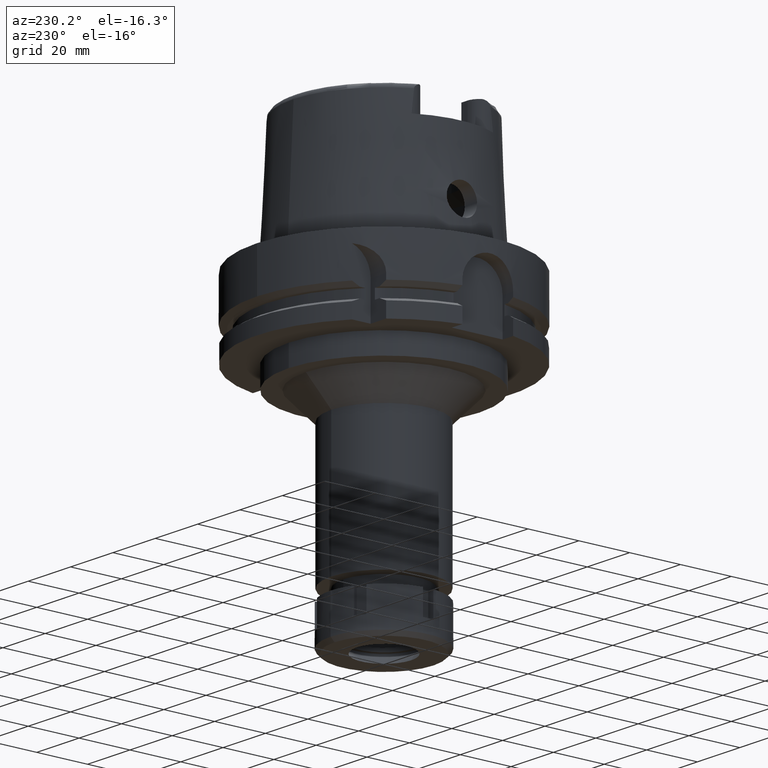
[diagram: clean part render]
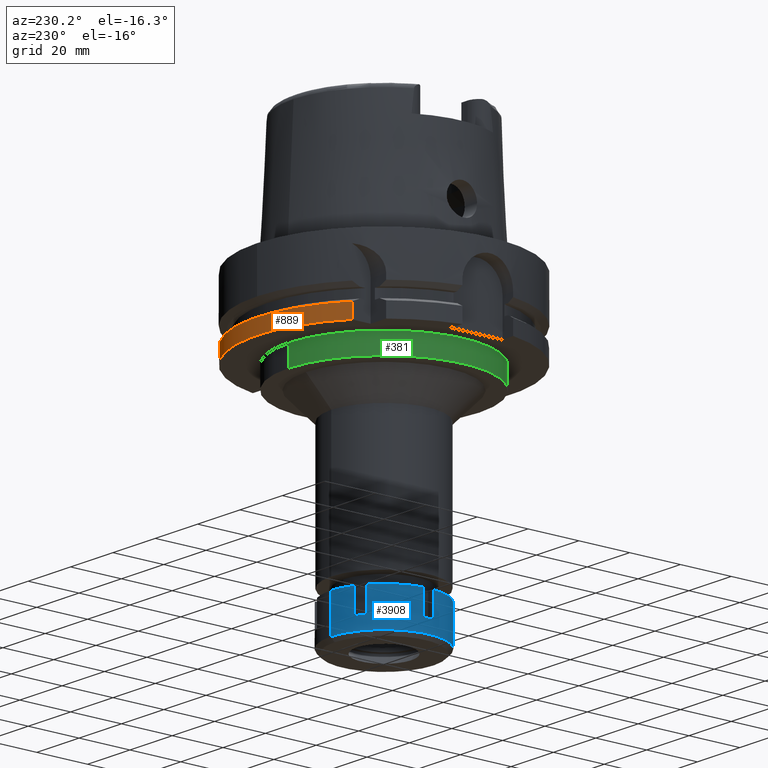
[diagram: same view with three faces highlighted in distinct colors, each labeled with its STEP entity id]
A machine part, auxiliary view with three faces highlighted in distinct colors.
Their STEP definitions:

[orange] entity #889 — the highlighted cylindrical surface (partial cylindrical patch) has radius 50 mm, axis along (0, 0, 1).
#166 = VECTOR ( 'NONE', #1061, 1000.000000000000000 ) ;
#198 = CARTESIAN_POINT ( 'NONE',  ( 48.77499359303000404, 11.00000000000000000, -29.00000000000000000 ) ) ;
#251 = DIRECTION ( 'NONE',  ( 6.188494047474892859E-07, 5.020316378013912240E-07, -0.9999999999996824762 ) ) ;
#511 = CARTESIAN_POINT ( 'NONE',  ( 0.0000000000000000000, 0.0000000000000000000, -23.24759526419000011 ) ) ;
#799 = EDGE_CURVE ( 'NONE', #5349, #1958, #4458, .T. ) ;
#889 = ADVANCED_FACE ( 'NONE', ( #1385 ), #2298, .T. ) ;
#954 = CARTESIAN_POINT ( 'NONE',  ( 0.0000000000000000000, 0.0000000000000000000, -120.0999999999999943 ) ) ;
#1061 = DIRECTION ( 'NONE',  ( -8.399427413532000465E-14, -2.068976605539000027E-14, 1.000000000000000000 ) ) ;
#1308 = CARTESIAN_POINT ( 'NONE',  ( -31.50000355985999789, 38.82975374283000036, -23.24760820811999906 ) ) ;
#1312 = CARTESIAN_POINT ( 'NONE',  ( -31.50000000000000000, 38.82975663071000128, -29.00000000000000000 ) ) ;
#1384 = CIRCLE ( 'NONE', #4995, 50.00000000000000000 ) ;
#1385 = FACE_OUTER_BOUND ( 'NONE', #3966, .T. ) ;
#1469 = DIRECTION ( 'NONE',  ( -0.6299999999999789102, 0.7765951326141738997, 0.0000000000000000000 ) ) ;
#1816 = AXIS2_PLACEMENT_3D ( 'NONE', #511, #1957, #1469 ) ;
#1840 = DIRECTION ( 'NONE',  ( 0.0000000000000000000, 0.0000000000000000000, 1.000000000000000000 ) ) ;
#1957 = DIRECTION ( 'NONE',  ( 0.0000000000000000000, 0.0000000000000000000, -1.000000000000000000 ) ) ;
#1958 = VERTEX_POINT ( 'NONE', #4612 ) ;
#2233 = ORIENTED_EDGE ( 'NONE', *, *, #799, .T. ) ;
#2298 = CYLINDRICAL_SURFACE ( 'NONE', #5737, 50.00000000000000000 ) ;
#2692 = DIRECTION ( 'NONE',  ( 0.0000000000000000000, 1.000000000000000000, 0.0000000000000000000 ) ) ;
#3065 = EDGE_CURVE ( 'NONE', #4512, #4919, #1384, .T. ) ;
#3088 = LINE ( 'NONE', #5403, #4992 ) ;
#3130 = DIRECTION ( 'NONE',  ( 0.0000000000000000000, 0.0000000000000000000, 1.000000000000000000 ) ) ;
#3471 = CARTESIAN_POINT ( 'NONE',  ( 48.77499359303000404, 11.00000000000000000, -29.00000000000000000 ) ) ;
#3707 = DIRECTION ( 'NONE',  ( 0.0000000000000000000, 1.000000000000000000, 0.0000000000000000000 ) ) ;
#3899 = EDGE_CURVE ( 'NONE', #5349, #4919, #3088, .T. ) ;
#3966 = EDGE_LOOP ( 'NONE', ( #2233, #4518, #4289, #4196 ) ) ;
#4196 = ORIENTED_EDGE ( 'NONE', *, *, #3899, .F. ) ;
#4289 = ORIENTED_EDGE ( 'NONE', *, *, #3065, .T. ) ;
#4458 = CIRCLE ( 'NONE', #1816, 50.00000000000000711 ) ;
#4512 = VERTEX_POINT ( 'NONE', #3471 ) ;
#4518 = ORIENTED_EDGE ( 'NONE', *, *, #5163, .F. ) ;
#4612 = CARTESIAN_POINT ( 'NONE',  ( 48.77499359303000404, 11.00000000000000000, -23.24759526419000011 ) ) ;
#4919 = VERTEX_POINT ( 'NONE', #1312 ) ;
#4992 = VECTOR ( 'NONE', #251, 1000.000000000000000 ) ;
#4995 = AXIS2_PLACEMENT_3D ( 'NONE', #5047, #3130, #2692 ) ;
#5047 = CARTESIAN_POINT ( 'NONE',  ( 0.0000000000000000000, 0.0000000000000000000, -29.00000000000000000 ) ) ;
#5163 = EDGE_CURVE ( 'NONE', #4512, #1958, #5812, .T. ) ;
#5349 = VERTEX_POINT ( 'NONE', #1308 ) ;
#5403 = CARTESIAN_POINT ( 'NONE',  ( -31.50000355985999789, 38.82975374283000036, -23.24760820811999906 ) ) ;
#5737 = AXIS2_PLACEMENT_3D ( 'NONE', #954, #1840, #3707 ) ;
#5812 = LINE ( 'NONE', #198, #166 ) ;

[blue] entity #3908 — the highlighted cylindrical surface (partial cylindrical patch) has radius 21 mm, axis along (0, 0, -1).
#98 = AXIS2_PLACEMENT_3D ( 'NONE', #3995, #5835, #3031 ) ;
#107 = DIRECTION ( 'NONE',  ( 0.0000000000000000000, 0.0000000000000000000, -1.000000000000000000 ) ) ;
#119 = ORIENTED_EDGE ( 'NONE', *, *, #3511, .F. ) ;
#162 = VECTOR ( 'NONE', #3887, 1000.000000000000000 ) ;
#223 = LINE ( 'NONE', #5256, #3333 ) ;
#248 = DIRECTION ( 'NONE',  ( 0.0000000000000000000, 0.0000000000000000000, -1.000000000000000000 ) ) ;
#324 = AXIS2_PLACEMENT_3D ( 'NONE', #2501, #5351, #1156 ) ;
#326 = VERTEX_POINT ( 'NONE', #519 ) ;
#429 = VERTEX_POINT ( 'NONE', #5860 ) ;
#458 = CIRCLE ( 'NONE', #4077, 21.00000000000000000 ) ;
#519 = CARTESIAN_POINT ( 'NONE',  ( -12.18432328774999895, 17.10386699022999935, 0.0000000000000000000 ) ) ;
#647 = VECTOR ( 'NONE', #4250, 1000.000000000000000 ) ;
#692 = AXIS2_PLACEMENT_3D ( 'NONE', #749, #3067, #4462 ) ;
#712 = CYLINDRICAL_SURFACE ( 'NONE', #3626, 21.00000000000000000 ) ;
#743 = CARTESIAN_POINT ( 'NONE',  ( 0.0000000000000000000, 0.0000000000000000000, 0.0000000000000000000 ) ) ;
#749 = CARTESIAN_POINT ( 'NONE',  ( 0.0000000000000000000, 0.0000000000000000000, -9.500000000000000000 ) ) ;
#757 = DIRECTION ( 'NONE',  ( 0.0000000000000000000, 0.0000000000000000000, 1.000000000000000000 ) ) ;
#782 = ORIENTED_EDGE ( 'NONE', *, *, #2331, .T. ) ;
#787 = LINE ( 'NONE', #821, #887 ) ;
#820 = VERTEX_POINT ( 'NONE', #6073 ) ;
#821 = CARTESIAN_POINT ( 'NONE',  ( -8.720221672615000585, -19.10386699022999935, -9.500000000000000000 ) ) ;
#887 = VECTOR ( 'NONE', #757, 1000.000000000000000 ) ;
#987 = DIRECTION ( 'NONE',  ( -0.5802058708454290725, -0.8144698566776411575, 0.0000000000000000000 ) ) ;
#1010 = EDGE_LOOP ( 'NONE', ( #119, #1224, #1589, #2506, #3156, #4092, #5450, #2720, #4382, #1102, #4268, #1561, #1967, #3807, #5254, #782 ) ) ;
#1055 = CARTESIAN_POINT ( 'NONE',  ( -8.720221672615000585, 19.10386699022999935, 0.0000000000000000000 ) ) ;
#1089 = CARTESIAN_POINT ( 'NONE',  ( 0.0000000000000000000, 0.0000000000000000000, -14.50000000000000000 ) ) ;
#1102 = ORIENTED_EDGE ( 'NONE', *, *, #5800, .T. ) ;
#1114 = VERTEX_POINT ( 'NONE', #1245 ) ;
#1156 = DIRECTION ( 'NONE',  ( -0.4152486510768949035, 0.9097079519157886818, 0.0000000000000000000 ) ) ;
#1166 = EDGE_CURVE ( 'NONE', #4327, #6039, #5282, .T. ) ;
#1224 = ORIENTED_EDGE ( 'NONE', *, *, #1662, .T. ) ;
#1245 = CARTESIAN_POINT ( 'NONE',  ( -8.720221672615998898, -19.10386699022999935, -9.500000000000000000 ) ) ;
#1277 = AXIS2_PLACEMENT_3D ( 'NONE', #3633, #5442, #4617 ) ;
#1280 = CIRCLE ( 'NONE', #4896, 21.00000000000000711 ) ;
#1387 = VERTEX_POINT ( 'NONE', #1431 ) ;
#1431 = CARTESIAN_POINT ( 'NONE',  ( 0.0000000000000000000, 21.00000000000000000, -14.50000000000000000 ) ) ;
#1441 = CARTESIAN_POINT ( 'NONE',  ( -20.90454496036999998, 2.000000000000000000, -9.500000000000000000 ) ) ;
#1464 = EDGE_CURVE ( 'NONE', #5091, #1387, #2317, .T. ) ;
#1561 = ORIENTED_EDGE ( 'NONE', *, *, #3395, .T. ) ;
#1589 = ORIENTED_EDGE ( 'NONE', *, *, #1464, .T. ) ;
#1662 = EDGE_CURVE ( 'NONE', #2187, #5091, #4535, .T. ) ;
#1713 = CARTESIAN_POINT ( 'NONE',  ( -20.90454496036999998, -2.000000000000000000, -9.500000000000000000 ) ) ;
#1731 = FACE_OUTER_BOUND ( 'NONE', #1010, .T. ) ;
#1768 = CIRCLE ( 'NONE', #692, 21.00000000000000711 ) ;
#1783 = VERTEX_POINT ( 'NONE', #4000 ) ;
#1784 = VERTEX_POINT ( 'NONE', #5433 ) ;
#1799 = CARTESIAN_POINT ( 'NONE',  ( 0.0000000000000000000, -21.00000000000000000, 0.0000000000000000000 ) ) ;
#1833 = DIRECTION ( 'NONE',  ( 0.0000000000000000000, 0.0000000000000000000, -1.000000000000000000 ) ) ;
#1951 = CARTESIAN_POINT ( 'NONE',  ( 0.0000000000000000000, 21.00000000000000000, 0.0000000000000000000 ) ) ;
#1961 = CARTESIAN_POINT ( 'NONE',  ( 0.0000000000000000000, 0.0000000000000000000, 0.0000000000000000000 ) ) ;
#1967 = ORIENTED_EDGE ( 'NONE', *, *, #1166, .F. ) ;
#2138 = LINE ( 'NONE', #4004, #5294 ) ;
#2187 = VERTEX_POINT ( 'NONE', #1055 ) ;
#2221 = DIRECTION ( 'NONE',  ( 0.0000000000000000000, -1.000000000000000000, 0.0000000000000000000 ) ) ;
#2259 = CIRCLE ( 'NONE', #98, 20.99999999999999289 ) ;
#2317 = LINE ( 'NONE', #6062, #647 ) ;
#2331 = EDGE_CURVE ( 'NONE', #2338, #5384, #1280, .T. ) ;
#2338 = VERTEX_POINT ( 'NONE', #3850 ) ;
#2501 = CARTESIAN_POINT ( 'NONE',  ( 0.0000000000000000000, 0.0000000000000000000, 0.0000000000000000000 ) ) ;
#2506 = ORIENTED_EDGE ( 'NONE', *, *, #3854, .T. ) ;
#2533 = DIRECTION ( 'NONE',  ( 0.0000000000000000000, 0.0000000000000000000, 1.000000000000000000 ) ) ;
#2621 = EDGE_CURVE ( 'NONE', #1114, #429, #1768, .T. ) ;
#2629 = EDGE_CURVE ( 'NONE', #3097, #820, #2138, .T. ) ;
#2720 = ORIENTED_EDGE ( 'NONE', *, *, #2621, .T. ) ;
#2999 = CARTESIAN_POINT ( 'NONE',  ( -20.90454496036999998, 2.000000000000000000, 0.0000000000000000000 ) ) ;
#3007 = DIRECTION ( 'NONE',  ( 0.0000000000000000000, -1.000000000000000000, 0.0000000000000000000 ) ) ;
#3031 = DIRECTION ( 'NONE',  ( -0.9954545219222313834, 0.09523809523810303213, 0.0000000000000000000 ) ) ;
#3046 = EDGE_CURVE ( 'NONE', #1114, #3418, #787, .T. ) ;
#3067 = DIRECTION ( 'NONE',  ( 0.0000000000000000000, 0.0000000000000000000, -1.000000000000000000 ) ) ;
#3096 = EDGE_CURVE ( 'NONE', #1784, #5823, #4109, .T. ) ;
#3097 = VERTEX_POINT ( 'NONE', #1713 ) ;
#3156 = ORIENTED_EDGE ( 'NONE', *, *, #3096, .F. ) ;
#3246 = AXIS2_PLACEMENT_3D ( 'NONE', #1089, #5869, #3599 ) ;
#3333 = VECTOR ( 'NONE', #2533, 1000.000000000000000 ) ;
#3348 = DIRECTION ( 'NONE',  ( 0.0000000000000000000, 0.0000000000000000000, -1.000000000000000000 ) ) ;
#3393 = CIRCLE ( 'NONE', #3879, 20.99999999999999645 ) ;
#3395 = EDGE_CURVE ( 'NONE', #3097, #6039, #3431, .T. ) ;
#3418 = VERTEX_POINT ( 'NONE', #5042 ) ;
#3423 = CARTESIAN_POINT ( 'NONE',  ( 0.0000000000000000000, 0.0000000000000000000, 0.0000000000000000000 ) ) ;
#3431 = CIRCLE ( 'NONE', #1277, 20.99999999999999289 ) ;
#3511 = EDGE_CURVE ( 'NONE', #2187, #5384, #5593, .T. ) ;
#3547 = DIRECTION ( 'NONE',  ( 0.0000000000000000000, 0.0000000000000000000, 1.000000000000000000 ) ) ;
#3599 = DIRECTION ( 'NONE',  ( 0.0000000000000000000, 1.000000000000000000, 0.0000000000000000000 ) ) ;
#3626 = AXIS2_PLACEMENT_3D ( 'NONE', #743, #4124, #2221 ) ;
#3633 = CARTESIAN_POINT ( 'NONE',  ( 0.0000000000000000000, 0.0000000000000000000, -9.500000000000000000 ) ) ;
#3701 = EDGE_CURVE ( 'NONE', #2338, #326, #223, .T. ) ;
#3807 = ORIENTED_EDGE ( 'NONE', *, *, #4243, .T. ) ;
#3850 = CARTESIAN_POINT ( 'NONE',  ( -12.18432328774999895, 17.10386699022999935, -9.500000000000000000 ) ) ;
#3854 = EDGE_CURVE ( 'NONE', #1387, #5823, #3924, .T. ) ;
#3879 = AXIS2_PLACEMENT_3D ( 'NONE', #1961, #3348, #987 ) ;
#3887 = DIRECTION ( 'NONE',  ( 0.0000000000000000000, 0.0000000000000000000, -1.000000000000000000 ) ) ;
#3908 = ADVANCED_FACE ( 'NONE', ( #1731 ), #712, .T. ) ;
#3924 = CIRCLE ( 'NONE', #3246, 21.00000000000000000 ) ;
#3965 = CARTESIAN_POINT ( 'NONE',  ( -20.90454496036999998, 2.000000000000000000, 0.0000000000000000000 ) ) ;
#3995 = CARTESIAN_POINT ( 'NONE',  ( 0.0000000000000000000, 0.0000000000000000000, 0.0000000000000000000 ) ) ;
#4000 = CARTESIAN_POINT ( 'NONE',  ( -12.18432328774999895, -17.10386699022999935, 0.0000000000000000000 ) ) ;
#4004 = CARTESIAN_POINT ( 'NONE',  ( -20.90454496036999998, -2.000000000000000000, -9.500000000000000000 ) ) ;
#4077 = AXIS2_PLACEMENT_3D ( 'NONE', #3423, #5380, #3007 ) ;
#4092 = ORIENTED_EDGE ( 'NONE', *, *, #5141, .T. ) ;
#4109 = LINE ( 'NONE', #1799, #5093 ) ;
#4124 = DIRECTION ( 'NONE',  ( 0.0000000000000000000, 0.0000000000000000000, -1.000000000000000000 ) ) ;
#4243 = EDGE_CURVE ( 'NONE', #4327, #326, #2259, .T. ) ;
#4250 = DIRECTION ( 'NONE',  ( 0.0000000000000000000, 0.0000000000000000000, -1.000000000000000000 ) ) ;
#4268 = ORIENTED_EDGE ( 'NONE', *, *, #2629, .F. ) ;
#4292 = CARTESIAN_POINT ( 'NONE',  ( 0.0000000000000000000, -21.00000000000000000, -14.50000000000000000 ) ) ;
#4327 = VERTEX_POINT ( 'NONE', #2999 ) ;
#4382 = ORIENTED_EDGE ( 'NONE', *, *, #4788, .F. ) ;
#4462 = DIRECTION ( 'NONE',  ( -0.4152486510768949035, -0.9097079519157886818, 0.0000000000000000000 ) ) ;
#4504 = VECTOR ( 'NONE', #6060, 1000.000000000000000 ) ;
#4535 = CIRCLE ( 'NONE', #324, 21.00000000000000711 ) ;
#4617 = DIRECTION ( 'NONE',  ( -0.9954545219222313834, -0.09523809523810303213, 0.0000000000000000000 ) ) ;
#4774 = CARTESIAN_POINT ( 'NONE',  ( 0.0000000000000000000, 0.0000000000000000000, -9.500000000000000000 ) ) ;
#4788 = EDGE_CURVE ( 'NONE', #1783, #429, #4895, .T. ) ;
#4852 = VECTOR ( 'NONE', #248, 1000.000000000000000 ) ;
#4895 = LINE ( 'NONE', #5358, #162 ) ;
#4896 = AXIS2_PLACEMENT_3D ( 'NONE', #4774, #107, #5145 ) ;
#5042 = CARTESIAN_POINT ( 'NONE',  ( -8.720221672615998898, -19.10386699022999935, 0.0000000000000000000 ) ) ;
#5091 = VERTEX_POINT ( 'NONE', #1951 ) ;
#5093 = VECTOR ( 'NONE', #1833, 1000.000000000000000 ) ;
#5141 = EDGE_CURVE ( 'NONE', #1784, #3418, #458, .T. ) ;
#5145 = DIRECTION ( 'NONE',  ( -0.5802058708453158298, 0.8144698566777217597, 0.0000000000000000000 ) ) ;
#5254 = ORIENTED_EDGE ( 'NONE', *, *, #3701, .F. ) ;
#5256 = CARTESIAN_POINT ( 'NONE',  ( -12.18432328774999895, 17.10386699022999935, -9.500000000000000000 ) ) ;
#5282 = LINE ( 'NONE', #3965, #4852 ) ;
#5294 = VECTOR ( 'NONE', #3547, 1000.000000000000000 ) ;
#5351 = DIRECTION ( 'NONE',  ( 0.0000000000000000000, 0.0000000000000000000, -1.000000000000000000 ) ) ;
#5358 = CARTESIAN_POINT ( 'NONE',  ( -12.18432328774999895, -17.10386699022999935, 0.0000000000000000000 ) ) ;
#5380 = DIRECTION ( 'NONE',  ( 0.0000000000000000000, 0.0000000000000000000, -1.000000000000000000 ) ) ;
#5384 = VERTEX_POINT ( 'NONE', #5467 ) ;
#5433 = CARTESIAN_POINT ( 'NONE',  ( 0.0000000000000000000, -21.00000000000000000, 0.0000000000000000000 ) ) ;
#5442 = DIRECTION ( 'NONE',  ( 0.0000000000000000000, 0.0000000000000000000, -1.000000000000000000 ) ) ;
#5450 = ORIENTED_EDGE ( 'NONE', *, *, #3046, .F. ) ;
#5467 = CARTESIAN_POINT ( 'NONE',  ( -8.720221672615000585, 19.10386699022999935, -9.500000000000000000 ) ) ;
#5564 = CARTESIAN_POINT ( 'NONE',  ( -8.720221672615000585, 19.10386699022999935, 0.0000000000000000000 ) ) ;
#5593 = LINE ( 'NONE', #5564, #4504 ) ;
#5800 = EDGE_CURVE ( 'NONE', #1783, #820, #3393, .T. ) ;
#5823 = VERTEX_POINT ( 'NONE', #4292 ) ;
#5835 = DIRECTION ( 'NONE',  ( 0.0000000000000000000, 0.0000000000000000000, -1.000000000000000000 ) ) ;
#5860 = CARTESIAN_POINT ( 'NONE',  ( -12.18432328774999895, -17.10386699022999935, -9.500000000000000000 ) ) ;
#5869 = DIRECTION ( 'NONE',  ( 0.0000000000000000000, 0.0000000000000000000, 1.000000000000000000 ) ) ;
#6039 = VERTEX_POINT ( 'NONE', #1441 ) ;
#6060 = DIRECTION ( 'NONE',  ( 0.0000000000000000000, 0.0000000000000000000, -1.000000000000000000 ) ) ;
#6062 = CARTESIAN_POINT ( 'NONE',  ( 0.0000000000000000000, 21.00000000000000000, 0.0000000000000000000 ) ) ;
#6073 = CARTESIAN_POINT ( 'NONE',  ( -20.90454496036999998, -2.000000000000000000, 0.0000000000000000000 ) ) ;

[green] entity #381 — the highlighted cylindrical surface (partial cylindrical patch) has radius 37.5 mm, axis along (0, 0, 1).
#10 = EDGE_CURVE ( 'NONE', #4241, #1941, #5162, .T. ) ;
#52 = DIRECTION ( 'NONE',  ( 0.0000000000000000000, 0.0000000000000000000, -1.000000000000000000 ) ) ;
#60 = DIRECTION ( 'NONE',  ( 0.0000000000000000000, 1.000000000000000000, 0.0000000000000000000 ) ) ;
#140 = DIRECTION ( 'NONE',  ( 0.0000000000000000000, 0.0000000000000000000, 1.000000000000000000 ) ) ;
#141 = EDGE_CURVE ( 'NONE', #4241, #3724, #4831, .T. ) ;
#268 = DIRECTION ( 'NONE',  ( 0.0000000000000000000, 1.000000000000000000, 0.0000000000000000000 ) ) ;
#273 = VERTEX_POINT ( 'NONE', #2895 ) ;
#328 = AXIS2_PLACEMENT_3D ( 'NONE', #4150, #2274, #2643 ) ;
#381 = ADVANCED_FACE ( 'NONE', ( #2799 ), #5159, .T. ) ;
#462 = DIRECTION ( 'NONE',  ( 0.0000000000000000000, 0.0000000000000000000, 1.000000000000000000 ) ) ;
#755 = EDGE_CURVE ( 'NONE', #3724, #273, #5669, .T. ) ;
#962 = CARTESIAN_POINT ( 'NONE',  ( 0.0000000000000000000, 0.0000000000000000000, -120.0999999999999943 ) ) ;
#1018 = DIRECTION ( 'NONE',  ( 0.0000000000000000000, 0.0000000000000000000, -1.000000000000000000 ) ) ;
#1335 = CARTESIAN_POINT ( 'NONE',  ( 0.0000000000000000000, -37.50000000000000000, -37.00000000000000000 ) ) ;
#1371 = ORIENTED_EDGE ( 'NONE', *, *, #141, .T. ) ;
#1941 = VERTEX_POINT ( 'NONE', #1335 ) ;
#1969 = CARTESIAN_POINT ( 'NONE',  ( 0.0000000000000000000, -37.50000000000000000, -29.00000000000000000 ) ) ;
#2274 = DIRECTION ( 'NONE',  ( 0.0000000000000000000, 0.0000000000000000000, -1.000000000000000000 ) ) ;
#2643 = DIRECTION ( 'NONE',  ( 0.0000000000000000000, -1.000000000000000000, 0.0000000000000000000 ) ) ;
#2687 = AXIS2_PLACEMENT_3D ( 'NONE', #962, #462, #60 ) ;
#2761 = CARTESIAN_POINT ( 'NONE',  ( 0.0000000000000000000, 37.50000000000000000, -29.00000000000000000 ) ) ;
#2799 = FACE_OUTER_BOUND ( 'NONE', #4261, .T. ) ;
#2814 = AXIS2_PLACEMENT_3D ( 'NONE', #4379, #140, #268 ) ;
#2895 = CARTESIAN_POINT ( 'NONE',  ( 0.0000000000000000000, 37.50000000000000000, -37.00000000000000000 ) ) ;
#3087 = ORIENTED_EDGE ( 'NONE', *, *, #10, .F. ) ;
#3180 = VECTOR ( 'NONE', #1018, 1000.000000000000000 ) ;
#3724 = VERTEX_POINT ( 'NONE', #5376 ) ;
#4026 = ORIENTED_EDGE ( 'NONE', *, *, #755, .T. ) ;
#4104 = ORIENTED_EDGE ( 'NONE', *, *, #4728, .T. ) ;
#4150 = CARTESIAN_POINT ( 'NONE',  ( 0.0000000000000000000, 0.0000000000000000000, -29.00000000000000000 ) ) ;
#4184 = CIRCLE ( 'NONE', #2814, 37.50000000000000000 ) ;
#4241 = VERTEX_POINT ( 'NONE', #4906 ) ;
#4261 = EDGE_LOOP ( 'NONE', ( #4104, #3087, #1371, #4026 ) ) ;
#4379 = CARTESIAN_POINT ( 'NONE',  ( 0.0000000000000000000, 0.0000000000000000000, -37.00000000000000000 ) ) ;
#4728 = EDGE_CURVE ( 'NONE', #273, #1941, #4184, .T. ) ;
#4831 = CIRCLE ( 'NONE', #328, 37.50000000000000000 ) ;
#4906 = CARTESIAN_POINT ( 'NONE',  ( 0.0000000000000000000, -37.50000000000000000, -29.00000000000000000 ) ) ;
#5159 = CYLINDRICAL_SURFACE ( 'NONE', #2687, 37.50000000000000000 ) ;
#5162 = LINE ( 'NONE', #1969, #3180 ) ;
#5376 = CARTESIAN_POINT ( 'NONE',  ( 0.0000000000000000000, 37.50000000000000000, -29.00000000000000000 ) ) ;
#5533 = VECTOR ( 'NONE', #52, 1000.000000000000000 ) ;
#5669 = LINE ( 'NONE', #2761, #5533 ) ;